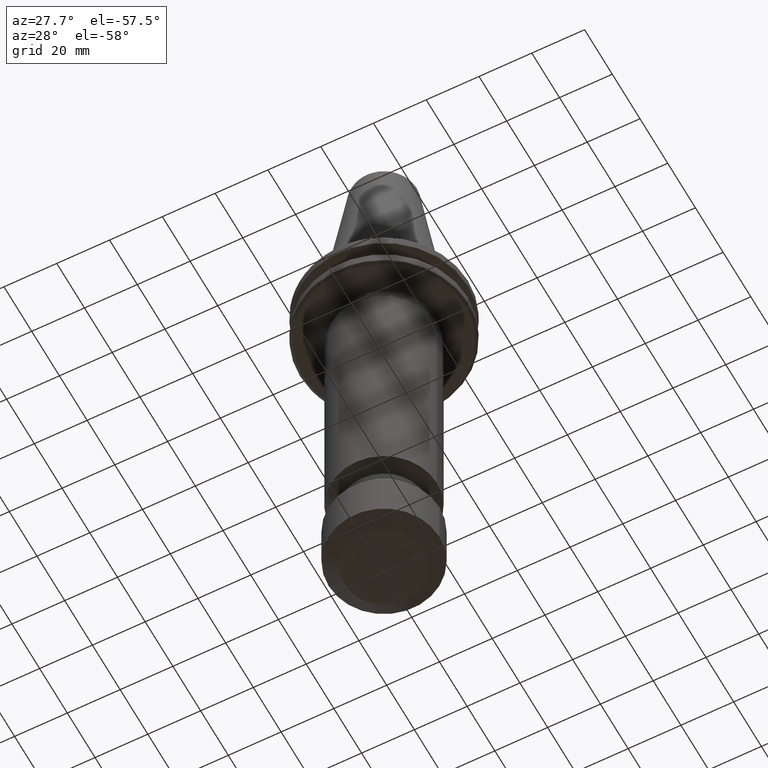
[diagram: clean part render]
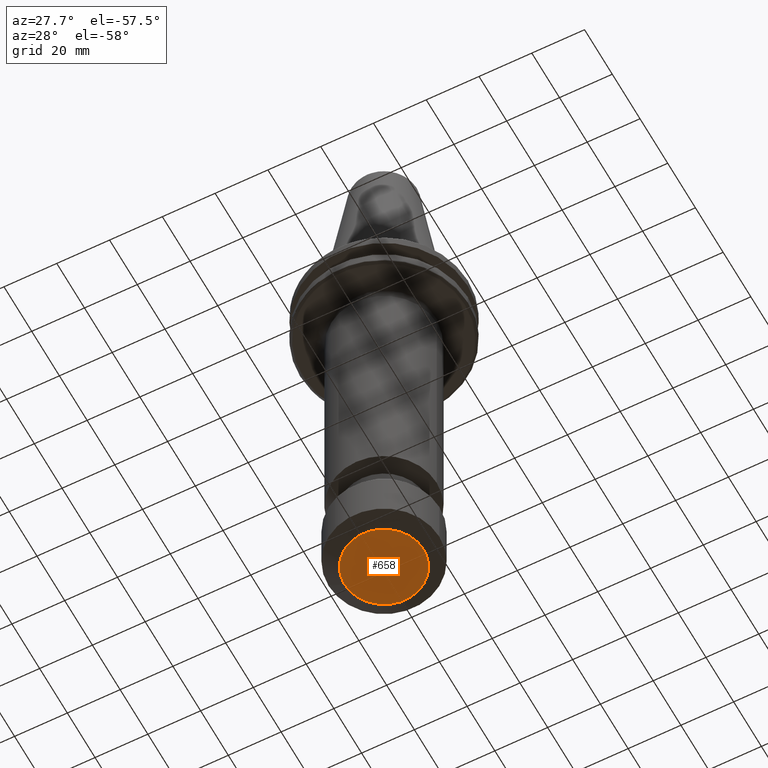
[diagram: same view with one face highlighted and labeled with its STEP entity id]
A machine part, auxiliary view. The second image highlights one B-rep face of the part: STEP entity #658.
In plain terms, the highlighted planar face has unit normal (0, 0, 1).
Its self-contained STEP definition (entity closure, byte-faithful):
#554 = DIRECTION ( 'NONE',  ( 0.0000000000000000000, -0.0000000000000000000, 1.000000000000000000 ) ) ;
#638 = CARTESIAN_POINT ( 'NONE',  ( -15.00000000000000000, 0.0000000000000000000, -160.0000000000000000 ) ) ;
#658 = ADVANCED_FACE ( 'NONE', ( #1225 ), #877, .F. ) ;
#805 = DIRECTION ( 'NONE',  ( 1.000000000000000000, 0.0000000000000000000, -0.0000000000000000000 ) ) ;
#813 = DIRECTION ( 'NONE',  ( 0.0000000000000000000, 0.0000000000000000000, 1.000000000000000000 ) ) ;
#836 = AXIS2_PLACEMENT_3D ( 'NONE', #638, #813, #805 ) ;
#868 = EDGE_CURVE ( 'NONE', #2696, #1723, #2332, .T. ) ;
#877 = PLANE ( 'NONE',  #836 ) ;
#1225 = FACE_OUTER_BOUND ( 'NONE', #2169, .T. ) ;
#1723 = VERTEX_POINT ( 'NONE', #1920 ) ;
#1920 = CARTESIAN_POINT ( 'NONE',  ( -15.00000000000000000, 2.204364238465235400E-015, -160.0000000000000000 ) ) ;
#2169 = EDGE_LOOP ( 'NONE', ( #2964, #3048 ) ) ;
#2184 = CARTESIAN_POINT ( 'NONE',  ( 0.0000000000000000000, 0.0000000000000000000, -160.0000000000000000 ) ) ;
#2201 = CARTESIAN_POINT ( 'NONE',  ( 15.00000000000000000, 0.0000000000000000000, -160.0000000000000000 ) ) ;
#2271 = EDGE_CURVE ( 'NONE', #1723, #2696, #2295, .T. ) ;
#2295 = CIRCLE ( 'NONE', #3289, 15.00000000000000000 ) ;
#2332 = CIRCLE ( 'NONE', #2648, 15.00000000000000000 ) ;
#2452 = DIRECTION ( 'NONE',  ( 1.000000000000000000, 0.0000000000000000000, 0.0000000000000000000 ) ) ;
#2648 = AXIS2_PLACEMENT_3D ( 'NONE', #2843, #2823, #2733 ) ;
#2696 = VERTEX_POINT ( 'NONE', #2201 ) ;
#2733 = DIRECTION ( 'NONE',  ( 1.000000000000000000, 0.0000000000000000000, 0.0000000000000000000 ) ) ;
#2823 = DIRECTION ( 'NONE',  ( 0.0000000000000000000, -0.0000000000000000000, 1.000000000000000000 ) ) ;
#2843 = CARTESIAN_POINT ( 'NONE',  ( 0.0000000000000000000, 0.0000000000000000000, -160.0000000000000000 ) ) ;
#2964 = ORIENTED_EDGE ( 'NONE', *, *, #868, .F. ) ;
#3048 = ORIENTED_EDGE ( 'NONE', *, *, #2271, .F. ) ;
#3289 = AXIS2_PLACEMENT_3D ( 'NONE', #2184, #554, #2452 ) ;